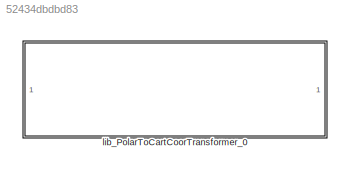
MODEL slx_52434dbdbd83
KIND library
CONFIG AbsTol = auto
CONFIG EnableMultiTasking = off
CONFIG FixedStep = auto
CONFIG MaxStep = auto
CONFIG MinStep = auto
CONFIG RelTol = 1e-3
CONFIG SampleTimeConstraint = Unconstrained
CONFIG SolverName = VariableStepAuto
CONFIG StartTime = 0.0
CONFIG StopTime = 10.0
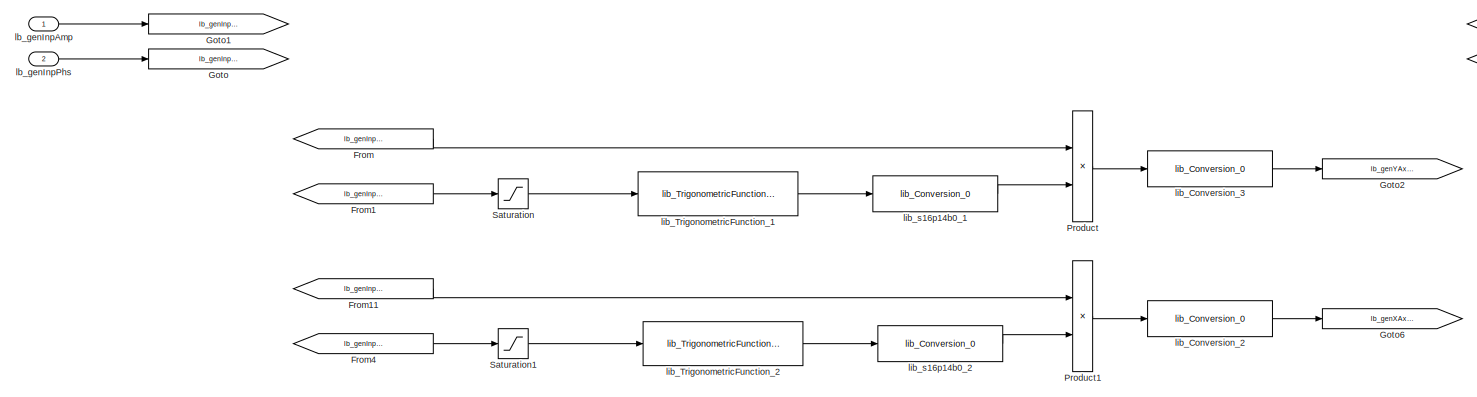
[diagram: lib_PolarToCartCoorTransformer_0 - part 1/2, most of the canvas]
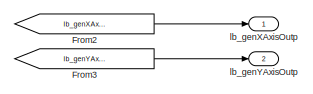
[diagram: lib_PolarToCartCoorTransformer_0 - part 2/2, top right region]
BLOCK [SubSystem] lib_PolarToCartCoorTransformer_0
BLOCK [From] lib_PolarToCartCoorTransformer_0/From
  GotoTag = lb_genInpAmp
BLOCK [From] lib_PolarToCartCoorTransformer_0/From1
  GotoTag = lb_genInpPhs
BLOCK [From] lib_PolarToCartCoorTransformer_0/From11
  GotoTag = lb_genInpAmp
BLOCK [From] lib_PolarToCartCoorTransformer_0/From2
  GotoTag = lb_genXAxisOutp
BLOCK [From] lib_PolarToCartCoorTransformer_0/From3
  GotoTag = lb_genYAxisOutp
BLOCK [From] lib_PolarToCartCoorTransformer_0/From4
  GotoTag = lb_genInpPhs
BLOCK [Goto] lib_PolarToCartCoorTransformer_0/Goto
  GotoTag = lb_genInpPhs
BLOCK [Goto] lib_PolarToCartCoorTransformer_0/Goto1
  GotoTag = lb_genInpAmp
BLOCK [Goto] lib_PolarToCartCoorTransformer_0/Goto2
  GotoTag = lb_genYAxisOutp
BLOCK [Goto] lib_PolarToCartCoorTransformer_0/Goto6
  GotoTag = lb_genXAxisOutp
BLOCK [Product] lib_PolarToCartCoorTransformer_0/Product
  OutDataTypeStr = Inherit: Inherit via back propagation
BLOCK [Product] lib_PolarToCartCoorTransformer_0/Product1
  OutDataTypeStr = Inherit: Inherit via back propagation
BLOCK [Saturate] lib_PolarToCartCoorTransformer_0/Saturation
  LowerLimit = 0
  UpperLimit = 2*pi
BLOCK [Saturate] lib_PolarToCartCoorTransformer_0/Saturation1
  LowerLimit = 0
  UpperLimit = 2*pi
BLOCK [Inport] lib_PolarToCartCoorTransformer_0/lb_genInpAmp
BLOCK [Inport] lib_PolarToCartCoorTransformer_0/lb_genInpPhs
  Port = 2
BLOCK [Outport] lib_PolarToCartCoorTransformer_0/lb_genXAxisOutp
BLOCK [Outport] lib_PolarToCartCoorTransformer_0/lb_genYAxisOutp
  Port = 2
BLOCK [Reference] lib_PolarToCartCoorTransformer_0/lib_Conversion_2  REF=lib_conversion/lib_Conversion_0  (lib defined in slx_7f5c0202220d)
  SourceBlock = lib_conversion/lib_Conversion_0
BLOCK [Reference] lib_PolarToCartCoorTransformer_0/lib_Conversion_3  REF=lib_conversion/lib_Conversion_0  (lib defined in slx_7f5c0202220d)
  SourceBlock = lib_conversion/lib_Conversion_0
BLOCK [Reference] lib_PolarToCartCoorTransformer_0/lib_TrigonometricFunction_1  REF=vhit_control_library/lib_TrigonometricFunction_0  (lib defined in slx_b9b276feab74)
  SourceBlock = vhit_control_library/lib_TrigonometricFunction_0
BLOCK [Reference] lib_PolarToCartCoorTransformer_0/lib_TrigonometricFunction_2  REF=vhit_control_library/lib_TrigonometricFunction_0  (lib defined in slx_b9b276feab74)
  SourceBlock = vhit_control_library/lib_TrigonometricFunction_0
BLOCK [Reference] lib_PolarToCartCoorTransformer_0/lib_s16p14b0_1  REF=lib_conversion/lib_Conversion_0  (lib defined in slx_7f5c0202220d)
  SourceBlock = lib_conversion/lib_Conversion_0
BLOCK [Reference] lib_PolarToCartCoorTransformer_0/lib_s16p14b0_2  REF=lib_conversion/lib_Conversion_0  (lib defined in slx_7f5c0202220d)
  SourceBlock = lib_conversion/lib_Conversion_0
LINE lib_PolarToCartCoorTransformer_0/From11:1 -> lib_PolarToCartCoorTransformer_0/Product1:1
LINE lib_PolarToCartCoorTransformer_0/From1:1 -> lib_PolarToCartCoorTransformer_0/Saturation:1
LINE lib_PolarToCartCoorTransformer_0/From2:1 -> lib_PolarToCartCoorTransformer_0/lb_genXAxisOutp:1
LINE lib_PolarToCartCoorTransformer_0/From3:1 -> lib_PolarToCartCoorTransformer_0/lb_genYAxisOutp:1
LINE lib_PolarToCartCoorTransformer_0/From4:1 -> lib_PolarToCartCoorTransformer_0/Saturation1:1
LINE lib_PolarToCartCoorTransformer_0/From:1 -> lib_PolarToCartCoorTransformer_0/Product:1
LINE lib_PolarToCartCoorTransformer_0/Product1:1 -> lib_PolarToCartCoorTransformer_0/lib_Conversion_2:1
LINE lib_PolarToCartCoorTransformer_0/Product:1 -> lib_PolarToCartCoorTransformer_0/lib_Conversion_3:1
LINE lib_PolarToCartCoorTransformer_0/Saturation1:1 -> lib_PolarToCartCoorTransformer_0/lib_TrigonometricFunction_2:1
LINE lib_PolarToCartCoorTransformer_0/Saturation:1 -> lib_PolarToCartCoorTransformer_0/lib_TrigonometricFunction_1:1
LINE lib_PolarToCartCoorTransformer_0/lb_genInpAmp:1 -> lib_PolarToCartCoorTransformer_0/Goto1:1
LINE lib_PolarToCartCoorTransformer_0/lb_genInpPhs:1 -> lib_PolarToCartCoorTransformer_0/Goto:1
LINE lib_PolarToCartCoorTransformer_0/lib_Conversion_2:1 -> lib_PolarToCartCoorTransformer_0/Goto6:1
LINE lib_PolarToCartCoorTransformer_0/lib_Conversion_3:1 -> lib_PolarToCartCoorTransformer_0/Goto2:1
LINE lib_PolarToCartCoorTransformer_0/lib_TrigonometricFunction_1:1 -> lib_PolarToCartCoorTransformer_0/lib_s16p14b0_1:1
LINE lib_PolarToCartCoorTransformer_0/lib_TrigonometricFunction_2:1 -> lib_PolarToCartCoorTransformer_0/lib_s16p14b0_2:1
LINE lib_PolarToCartCoorTransformer_0/lib_s16p14b0_1:1 -> lib_PolarToCartCoorTransformer_0/Product:2
LINE lib_PolarToCartCoorTransformer_0/lib_s16p14b0_2:1 -> lib_PolarToCartCoorTransformer_0/Product1:2
